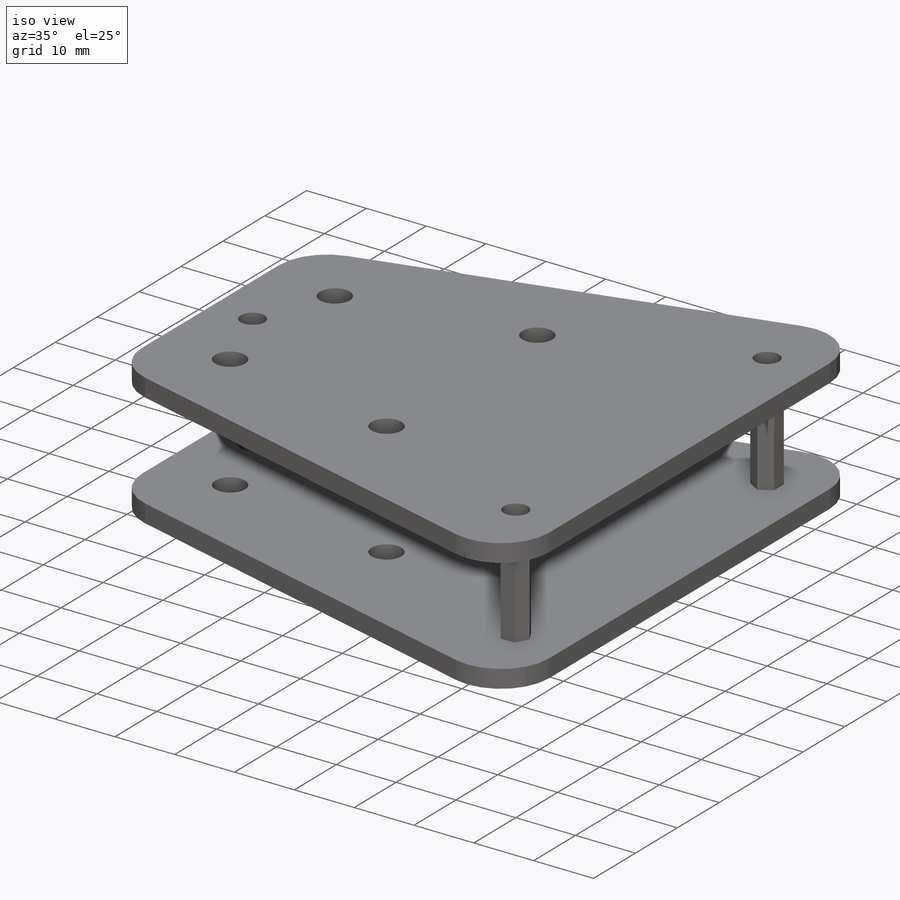
[diagram: iso view]
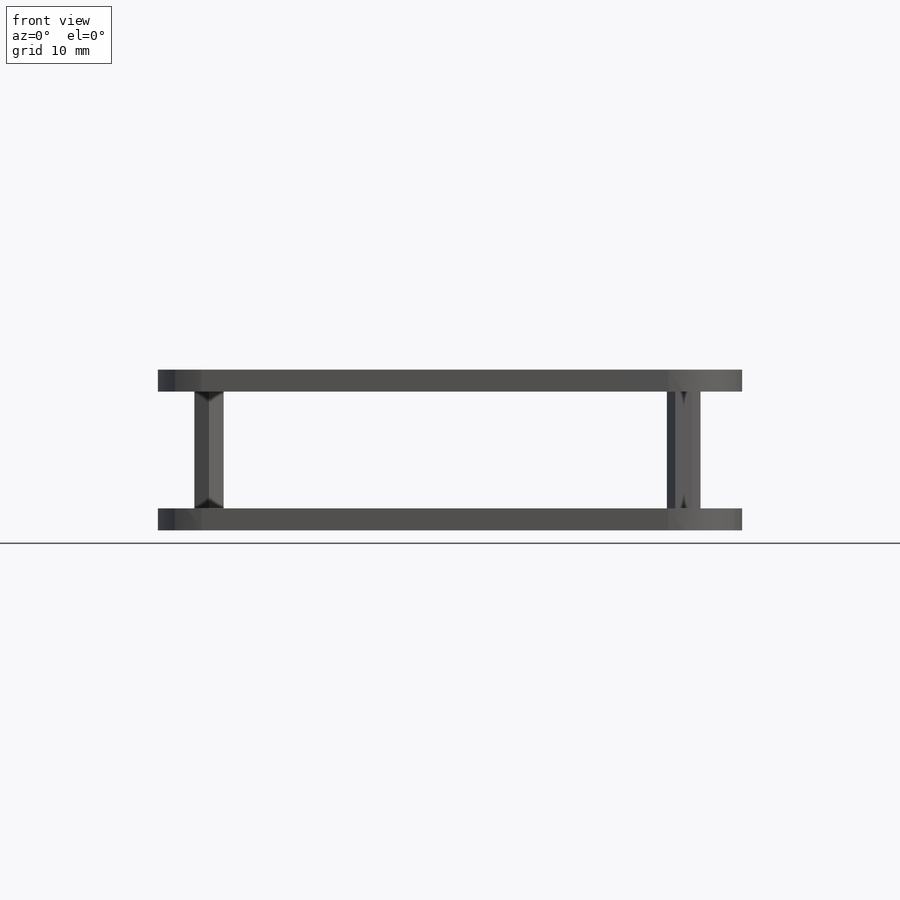
[diagram: front view]
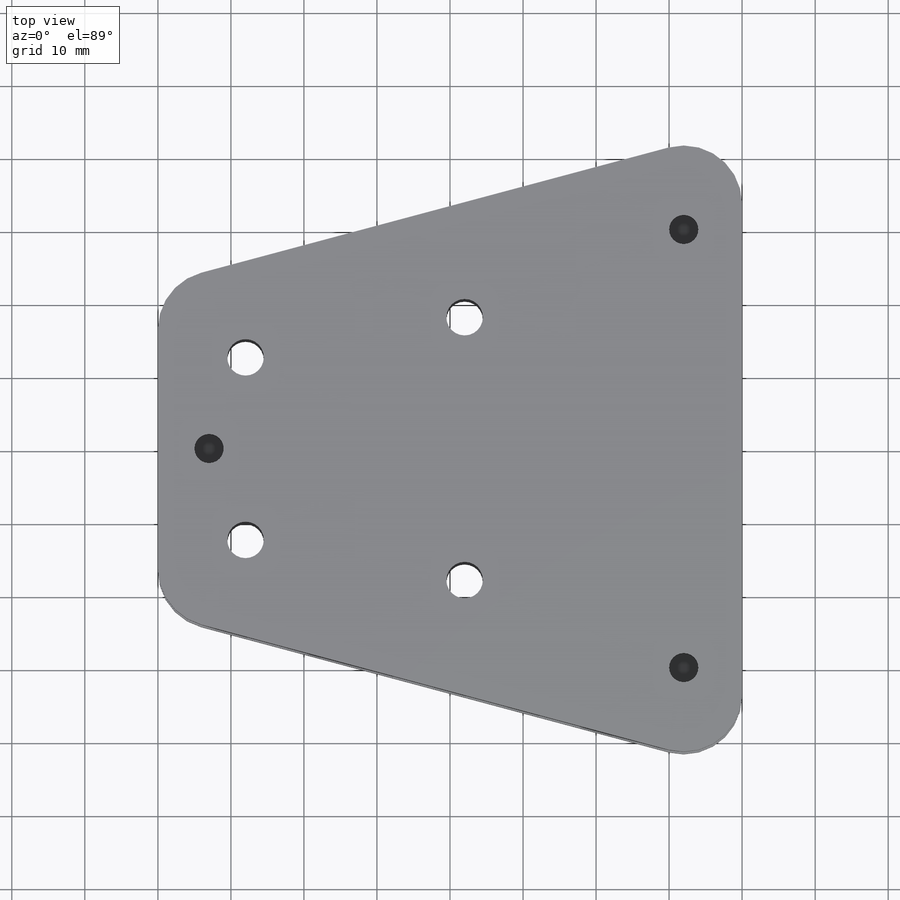
[diagram: top view]
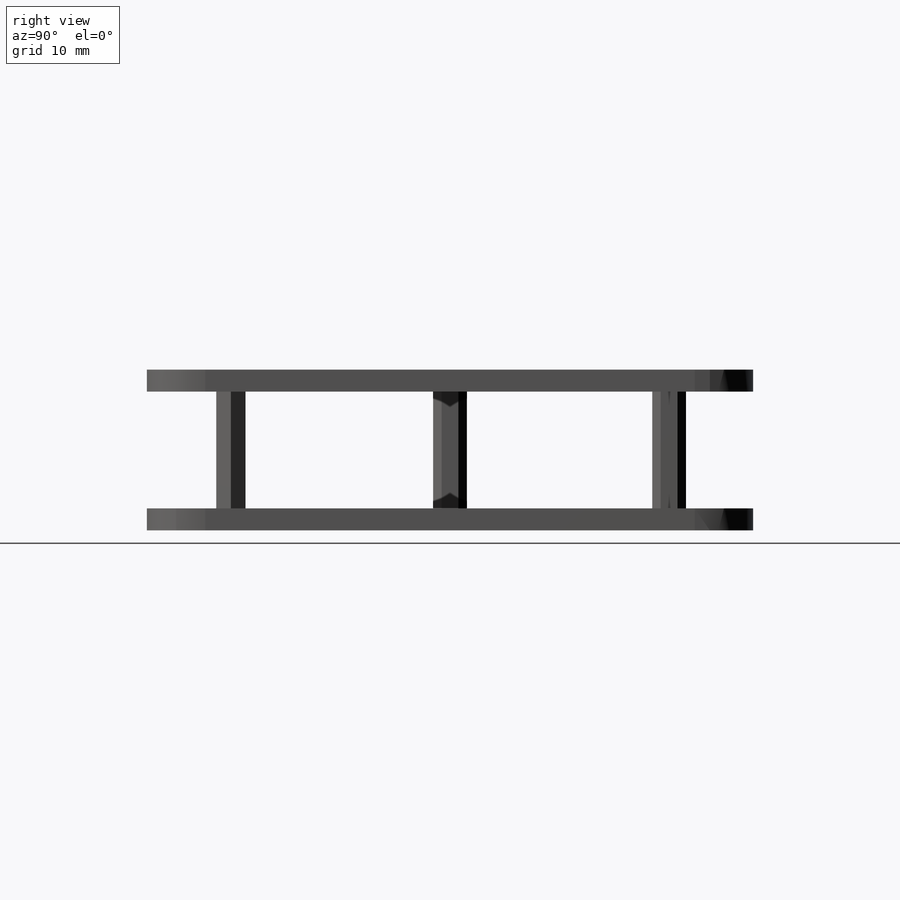
[diagram: right view]
SOLIDWORKS PART (.sldprt)
format: sldprt  version: not decoded by parser v0  size: 220,672 bytes
history: native  units: mm
features: plane x3, sketch x3, extrude x2, material x1, cut_extrude x1 (+8 scaffold rows collapsed)
feature tree (18):
  scaffold x8  (default folders/planes/origin — collapsed)
  material  "Material <sin especificar>"
  plane  "Alzado"
  plane  "Planta"
  plane  "Vista lateral"
  sketch  "Croquis1"  dims[c1.D2=5.0mm c1.D9=8.0mm c1.D11=4.0mm c1.D1=25.0mm c1.D3=30.0mm c1.D4=36.0mm c1.D5=45.0mm c1.D6=80.0mm c1.D7=28.0mm c1.D8=35.0mm c2.D8=75.0deg c2.D10=5.0mm c2.D12=30.0mm c2.D13=60.0mm]
  extrude  "Saliente-Extruir1"  Depth=22mm
  sketch  "Croquis2"  dims[D1=16.0mm]
  cut_extrude  "Cortar-Extruir1"  Depth=100mm
  sketch  "Croquis3"
  extrude  "Saliente-Extruir2"  Depth=16mm
decode coverage: 5 of 6 modeling features carry decoded parameters
note: suppression state not decoded; provenance and decode notes live in map.json
